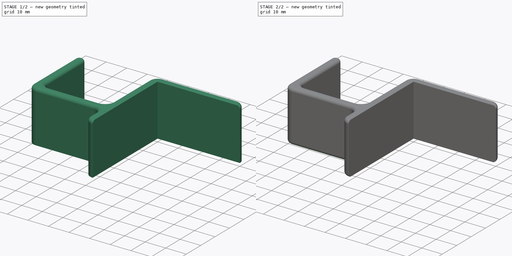
[diagram: build sequence overview — one tinted view per stage of 2, left to right]
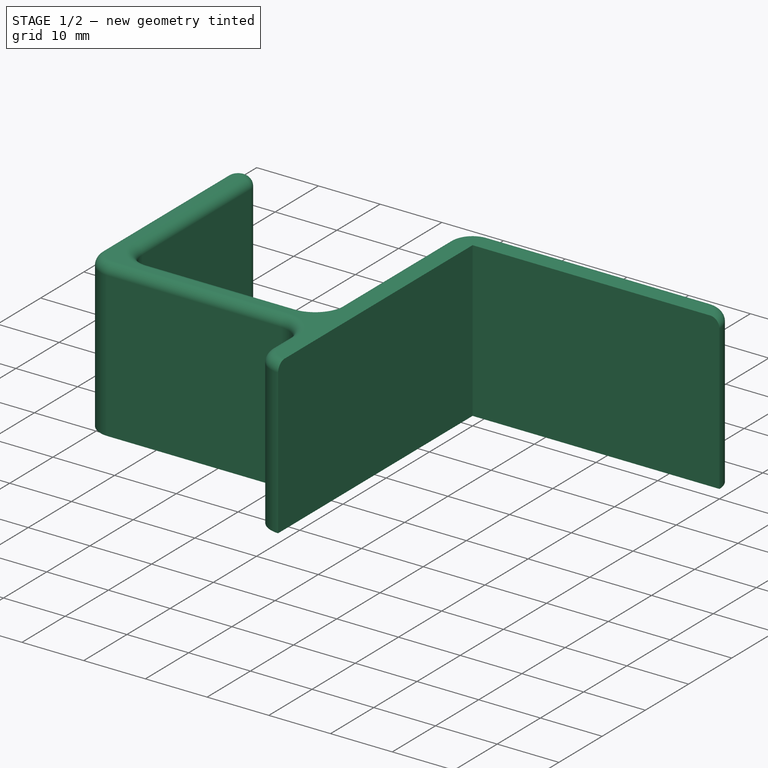
[diagram: stage 1 of 2 — iso view after this stage's code; geometry added in this stage tinted green]
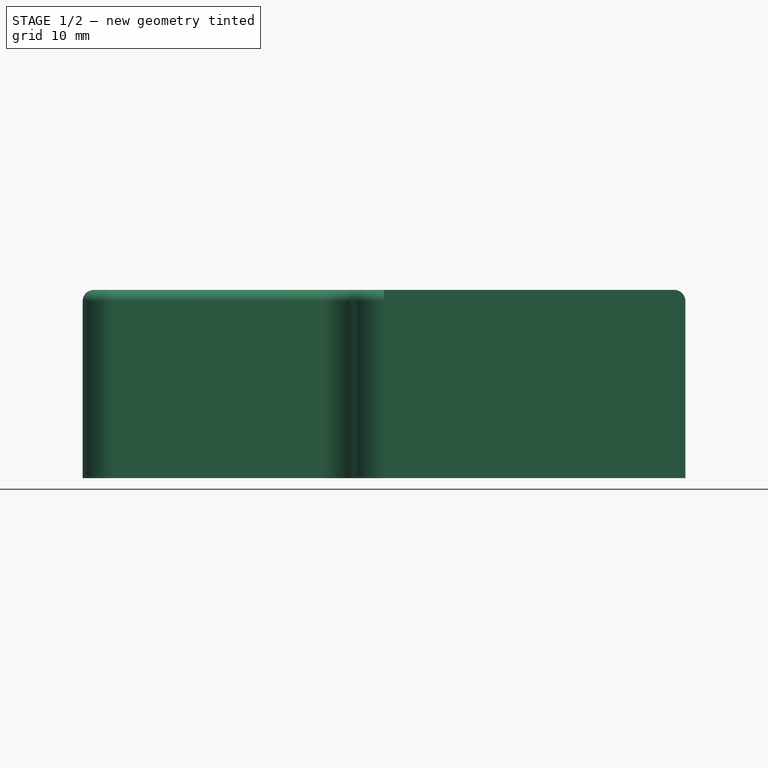
[diagram: stage 1 of 2 — front view after this stage's code; geometry added in this stage tinted green]
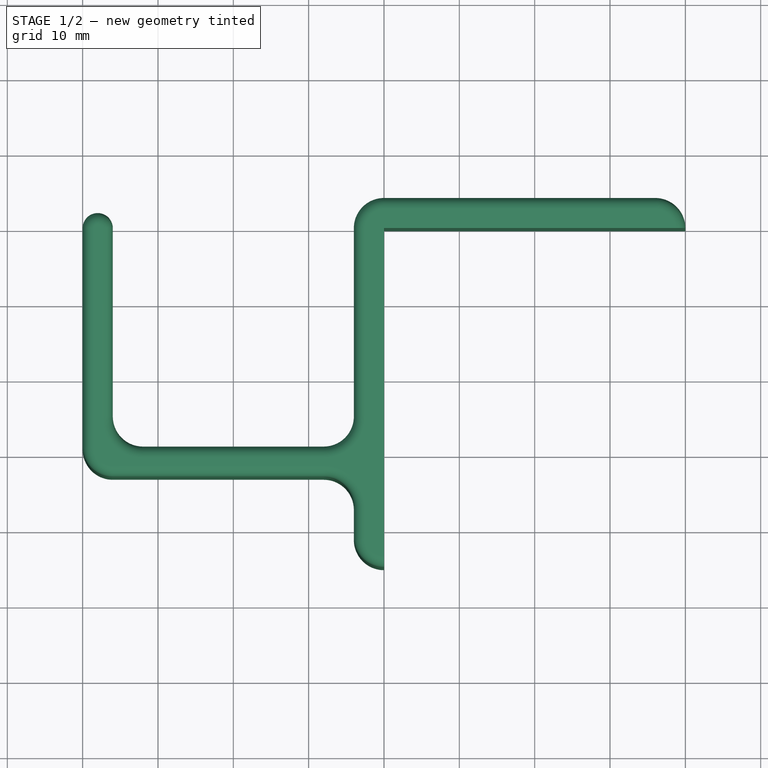
[diagram: stage 1 of 2 — top view after this stage's code; geometry added in this stage tinted green]
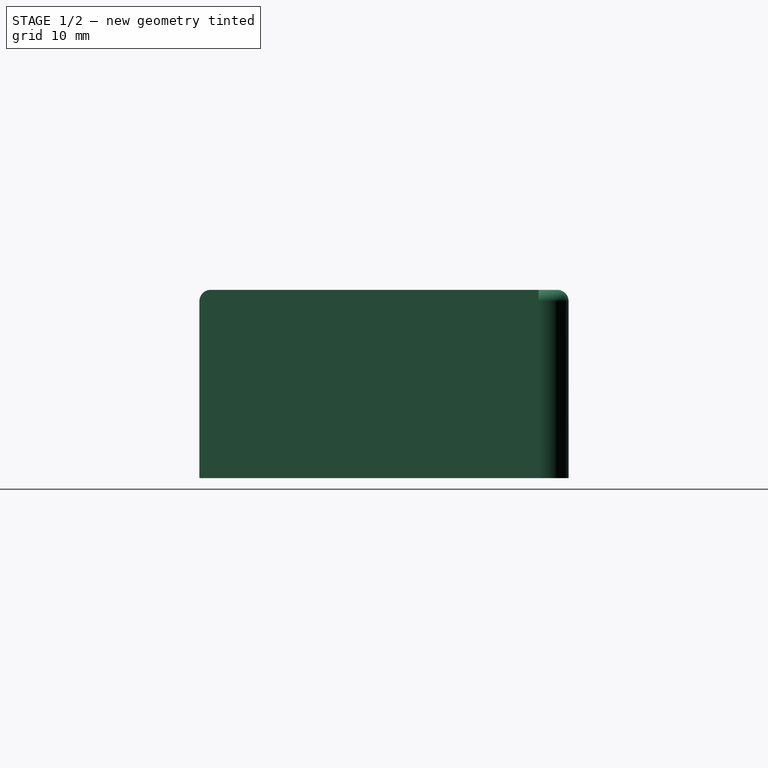
[diagram: stage 1 of 2 — right view after this stage's code; geometry added in this stage tinted green]
FCSTD DOCUMENT  (FreeCAD 2022.111R30764 (Git))
Label: headphone hook for desk
License: All rights reserved
LicenseURL: http://en.wikipedia.org/wiki/All_rights_reserved
objects: PartDesign::Fillet×2, Sketcher::SketchObject×1, PartDesign::Pad×1, PartDesign::Body×1
note: 11 computed .brp shape members not serialized (recipe doc carries the construction recipe); baked Part::Feature solids carry a one-line shape summary decoded from their .brp

FEATURE [Sketcher::SketchObject] Sketch
  FullyConstrained = true
  MapMode = 5
  Support = -> [XY_Plane]
  TreeRank = 11
  sketch-geometry (23):
    g0: LineSegment StartX=0 StartY=0 StartZ=0 EndX=0 EndY=-45 EndZ=0
    g1: LineSegment StartX=-4 StartY=-41 StartZ=0 EndX=-4 EndY=-37 EndZ=0
    g2: LineSegment StartX=-8 StartY=-33 StartZ=0 EndX=-36 EndY=-33 EndZ=0
    g3: LineSegment StartX=-40 StartY=-29 StartZ=0 EndX=-40 EndY=0 EndZ=0
    g4: LineSegment StartX=-36 StartY=2e-16 StartZ=0 EndX=-36 EndY=-25 EndZ=0
    g5: LineSegment StartX=-32 StartY=-29 StartZ=0 EndX=-8 EndY=-29 EndZ=0
    g6: LineSegment StartX=-4 StartY=-25 StartZ=0 EndX=-4 EndY=0 EndZ=0
    g7: LineSegment StartX=-1.7e-15 StartY=4 StartZ=0 EndX=36 EndY=4 EndZ=0
    g8: LineSegment StartX=40 StartY=0 StartZ=0 EndX=0 EndY=0 EndZ=0
    g9: ArcOfCircle CenterX=36 CenterY=0 CenterZ=0 NormalX=0 NormalY=0 NormalZ=1 AngleXU=0 Radius=4 StartAngle=0 EndAngle=1.5708
    g10: ArcOfCircle CenterX=-2e-15 CenterY=-1e-16 CenterZ=0 NormalX=0 NormalY=0 NormalZ=1 AngleXU=0 Radius=4 StartAngle=1.5708 EndAngle=3.14159
    g11: GeomPoint [constr] X=-4 Y=4 Z=0
    g12: GeomPoint [constr] X=-36 Y=0 Z=0
    g13: ArcOfCircle CenterX=-32 CenterY=-25 CenterZ=0 NormalX=0 NormalY=0 NormalZ=1 AngleXU=0 Radius=4 StartAngle=3.14159 EndAngle=4.71239
    g14: GeomPoint [constr] X=-36 Y=-29 Z=0
    g15: ArcOfCircle CenterX=-36 CenterY=-29 CenterZ=0 NormalX=0 NormalY=0 NormalZ=1 AngleXU=0 Radius=4 StartAngle=3.14159 EndAngle=4.71239
    g16: GeomPoint [constr] X=-40 Y=-33 Z=0
    g17: ArcOfCircle CenterX=-8 CenterY=-25 CenterZ=0 NormalX=0 NormalY=0 NormalZ=1 AngleXU=0 Radius=4 StartAngle=4.71239 EndAngle=6.28319
    g18: GeomPoint [constr] X=-4 Y=-29 Z=0
    g19: ArcOfCircle CenterX=-8 CenterY=-37 CenterZ=0 NormalX=0 NormalY=0 NormalZ=1 AngleXU=0 Radius=4 StartAngle=4e-16 EndAngle=1.5708
    g20: GeomPoint [constr] X=-4 Y=-33 Z=0
    g21: ArcOfCircle CenterX=0 CenterY=-41 CenterZ=0 NormalX=0 NormalY=0 NormalZ=1 AngleXU=0 Radius=4 StartAngle=3.14159 EndAngle=4.71239
    g22: ArcOfCircle CenterX=-38 CenterY=0 CenterZ=0 NormalX=0 NormalY=0 NormalZ=1 AngleXU=0 Radius=2 StartAngle=1e-16 EndAngle=3.14159
  constraints (56):
    c: Coincident(g-1,g0)
    c: PointOnObject(g0,g-2)
    c: Vertical(g1)
    c: Horizontal(g2)
    c: Vertical(g3)
    c: PointOnObject(g12,g-1)
    c: Vertical(g4)
    c: Horizontal(g5)
    c: Vertical(g6)
    c: Horizontal(g7)
    c: Coincident(g8,g0)
    c: DistanceX(g8,g8) = 40
    c: DistanceY(g0,g0) = 45
    c: DistanceX(g14,g18) = 32
    c: Vertical(g18,g20)
    c: DistanceY(g20,g18) = 4
    c: Tangent(g7,g9) = 1.5708
    c: PointOnObject(g11,g7)
    c: PointOnObject(g11,g6)
    c: Tangent(g7,g10) = 1.5708
    c: Tangent(g6,g10) = 1.5708
    c: PointOnObject(g12,g4)
    c: PointOnObject(g14,g4)
    c: PointOnObject(g14,g5)
    c: Tangent(g4,g13) = -1.5708
    c: Tangent(g5,g13) = -1.5708
    c: PointOnObject(g16,g3)
    c: PointOnObject(g16,g2)
    c: Tangent(g3,g15) = 1.5708
    c: Tangent(g2,g15) = 1.5708
    c: PointOnObject(g18,g5)
    c: PointOnObject(g18,g6)
    c: Tangent(g5,g17) = -1.5708
    c: Tangent(g6,g17) = -1.5708
    c: PointOnObject(g20,g2)
    c: PointOnObject(g20,g1)
    c: Tangent(g2,g19) = -1.5708
    c: Tangent(g1,g19) = -1.5708
    c: Equal(g9,g21)
    c: Coincident(g21,g0)
    c: Tangent(g21,g1) = 1.5708
    c: Perpendicular(g21,g-2)
    c: Horizontal(g8)
    c: Coincident(g9,g8)
    c: Perpendicular(g9,g8)
    c: Equal(g17,g19)
    c: Diameter(g17) = 8
    c: DistanceX(g1,g21) = 4
    c: DistanceY(g4,g4) = 25
    c: Tangent(g22,g4) = 1.5708
    c: Tangent(g22,g3) = 1.5708
    c: DistanceX(g3,g4) = 4
    c: PointOnObject(g22,g-1)
    c: Equal(g13,g10)
    c: Equal(g17,g13)
    c: Equal(g13,g15)
FEATURE [PartDesign::Pad] Pad
  AddSubType = 0
  AlongSketchNormal = false
  CheckUpToFaceLimits = true
  ClaimChildren = false
  Direction = (0,0,1)
  Fit = 0
  FitJoin = 0
  InnerFit = 0
  InnerFitJoin = 0
  InnerTaperAngle = 0
  InnerTaperAngleRev = 0
  Length = 25
  Length2 = 100
  Linearize = true
  NewSolid = false
  Profile = -> Sketch
  Suppress = false
  TreeRank = 12
  Type = 0
  _ProfileBasedVersion = 1
FEATURE [PartDesign::Fillet] Fillet
  AddSubType = 0
  Base = -> Pad [Edge10,Edge13,Edge16,Edge19,Edge22,Edge25,Edge28,Edge31,Edge34,Edge37,Edge40,Edge43,Edge46,Edge49,Edge51]
  BaseFeature = -> Pad
  NewSolid = false
  Radius = 1.5
  SupportTransform = false
  Suppress = false
  TreeRank = 13
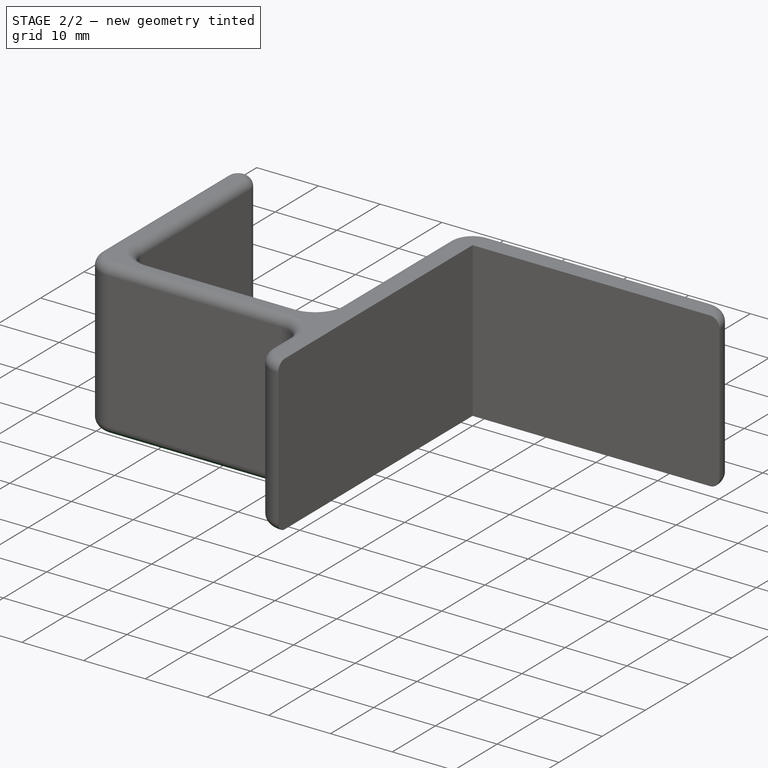
[diagram: stage 2 of 2 — iso view after this stage's code; geometry added in this stage tinted green]
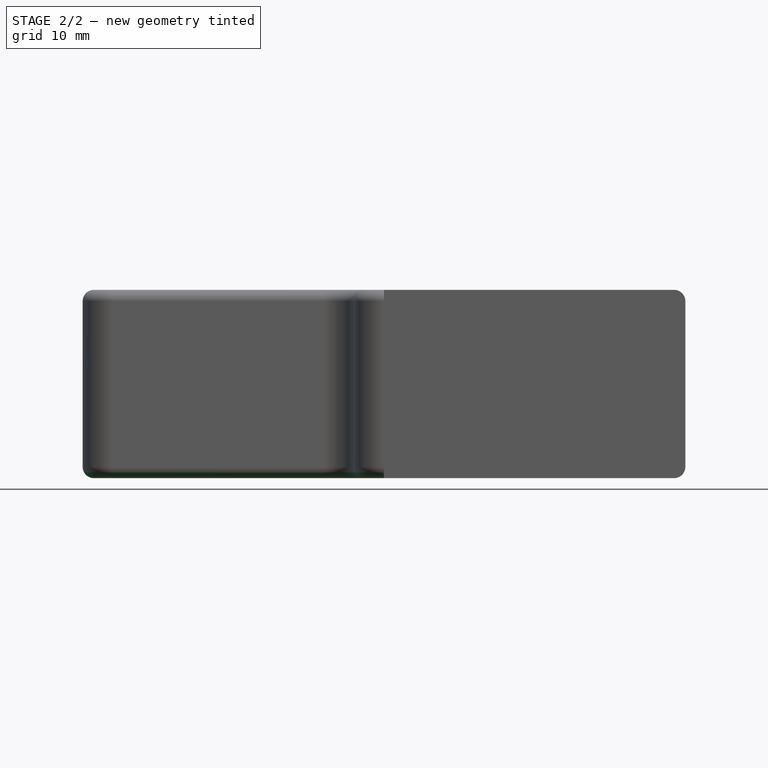
[diagram: stage 2 of 2 — front view after this stage's code; geometry added in this stage tinted green]
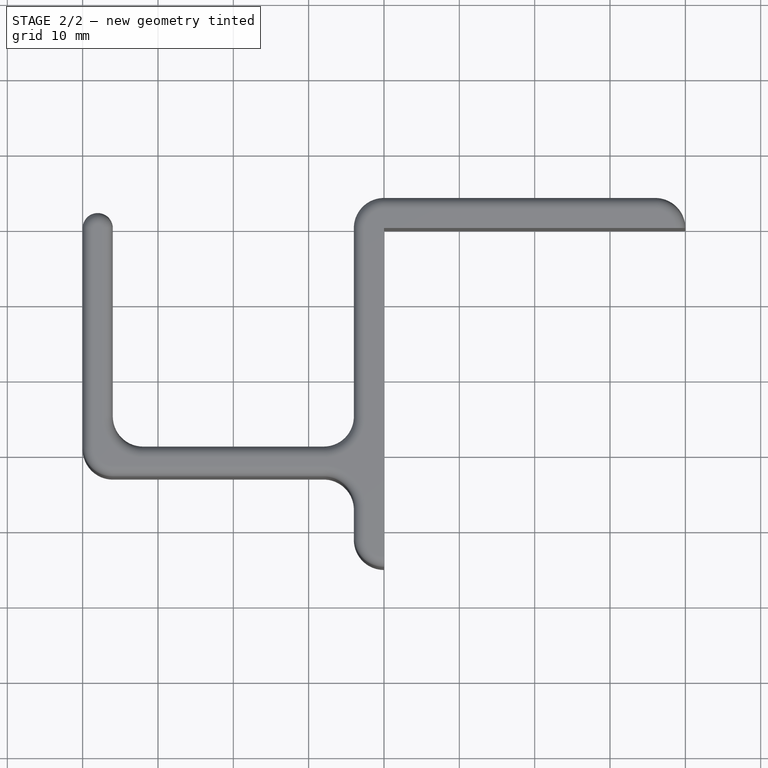
[diagram: stage 2 of 2 — top view after this stage's code; geometry added in this stage tinted green]
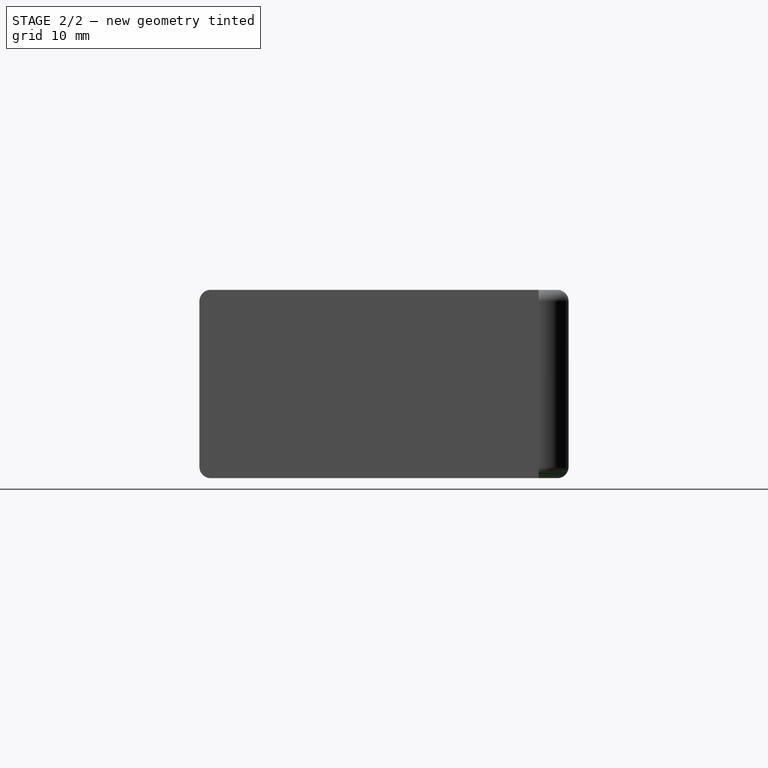
[diagram: stage 2 of 2 — right view after this stage's code; geometry added in this stage tinted green]
FEATURE [PartDesign::Fillet] Fillet001
  AddSubType = 0
  Base = -> Fillet [Edge7,Edge25,Edge24,Edge23,Edge22,Edge21,Edge20,Edge19,Edge18,Edge17,Edge16,Edge15,Edge14,Edge13,Edge12]
  BaseFeature = -> Fillet
  NewSolid = false
  Radius = 1.5
  SupportTransform = false
  Suppress = false
  TreeRank = 14
FEATURE [PartDesign::Body] Body
  AutoGroupSolids = false
  ExportMode = 0
  Group = -> [Sketch,Pad,Fillet,Fillet001]
  Origin = -> Origin
  Tip = -> Fillet001
  TreeRank = 10
  _ExportChildren = -> [Pad,Fillet,Fillet001]
  _GroupVersion = 1
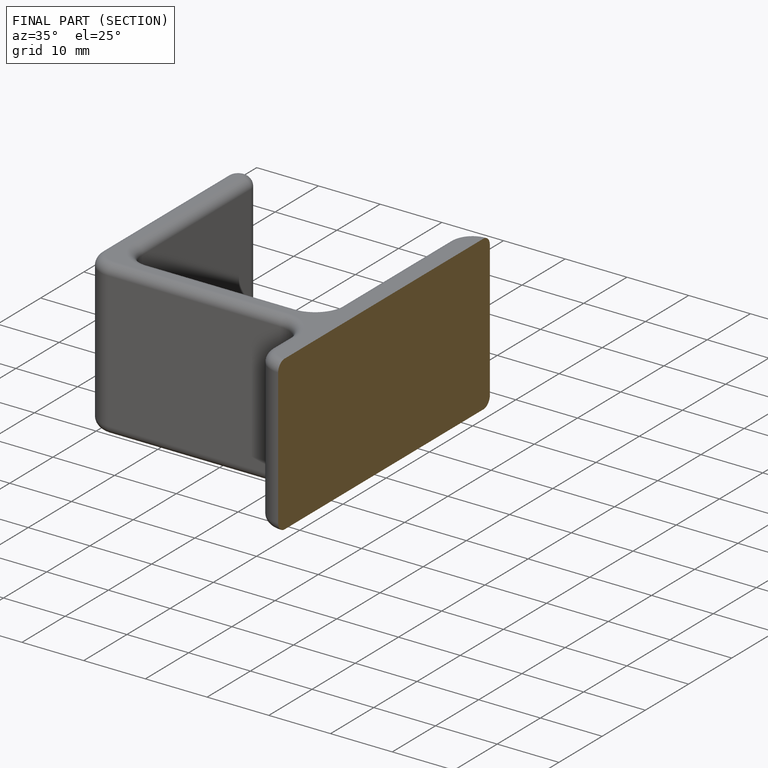
[diagram: finished part — half-section view (interior)]
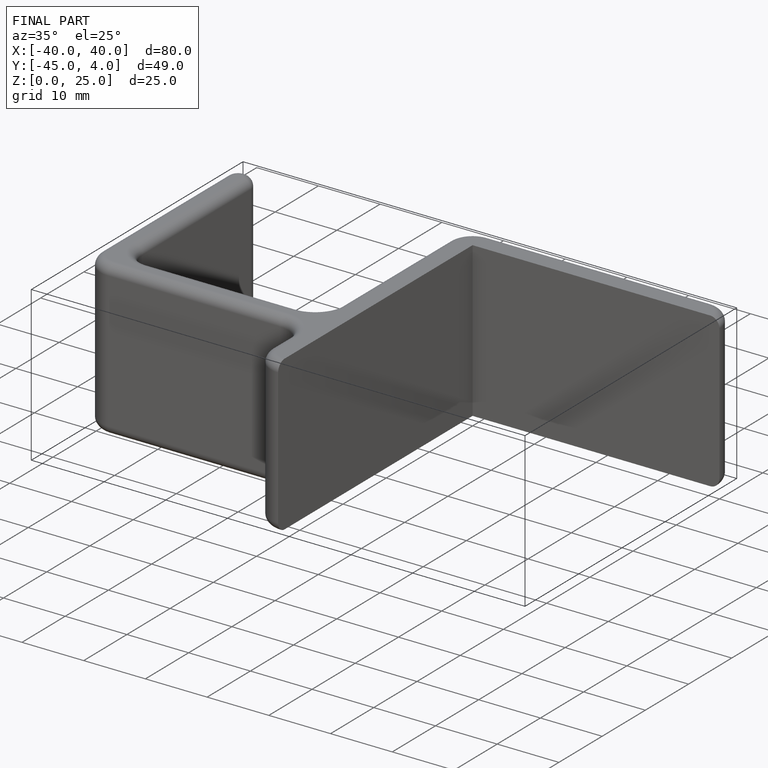
[diagram: finished part — iso view with bounding-box wireframe]
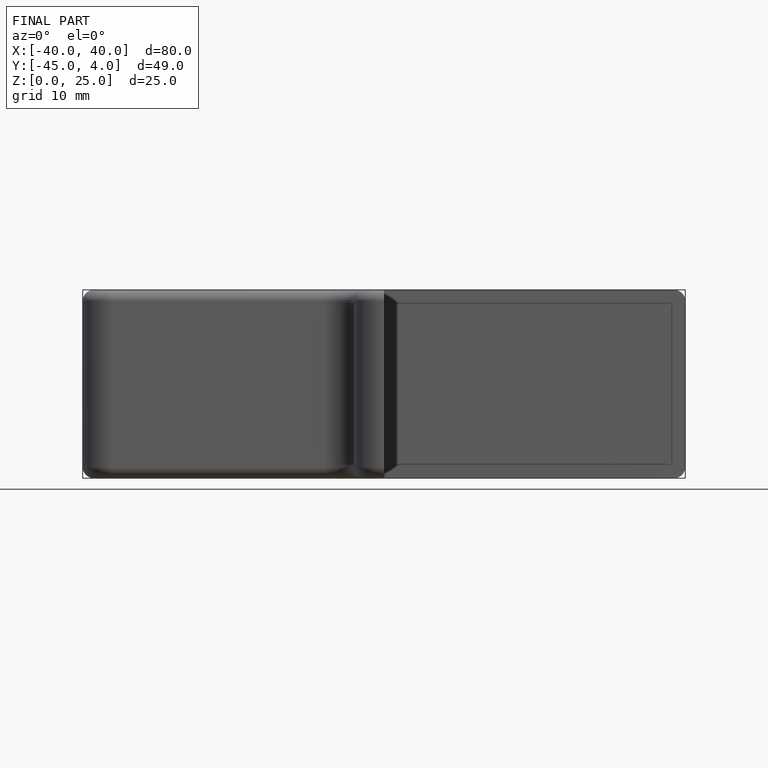
[diagram: finished part — front view with bounding-box wireframe]
